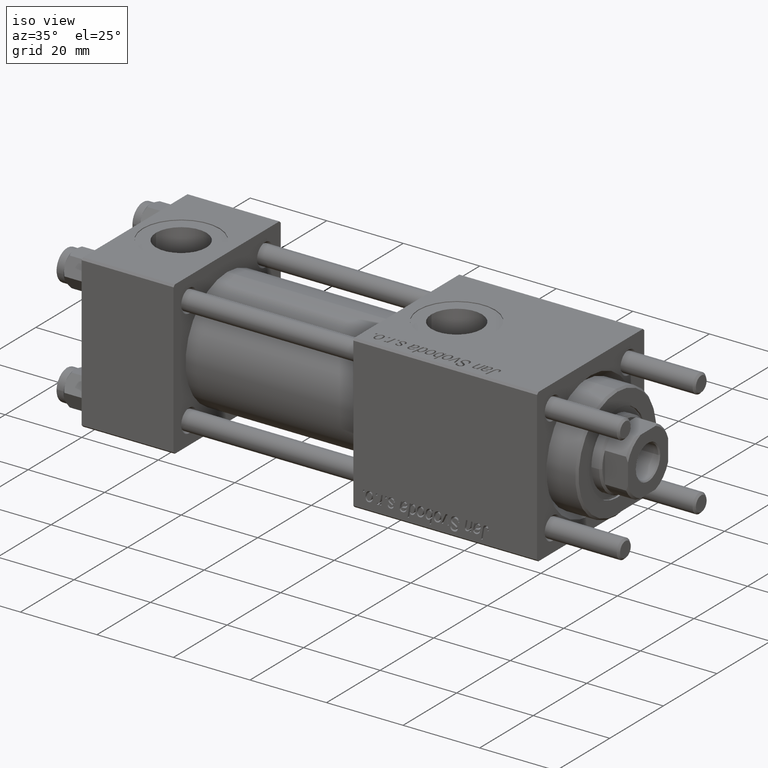
[diagram: clean part render]
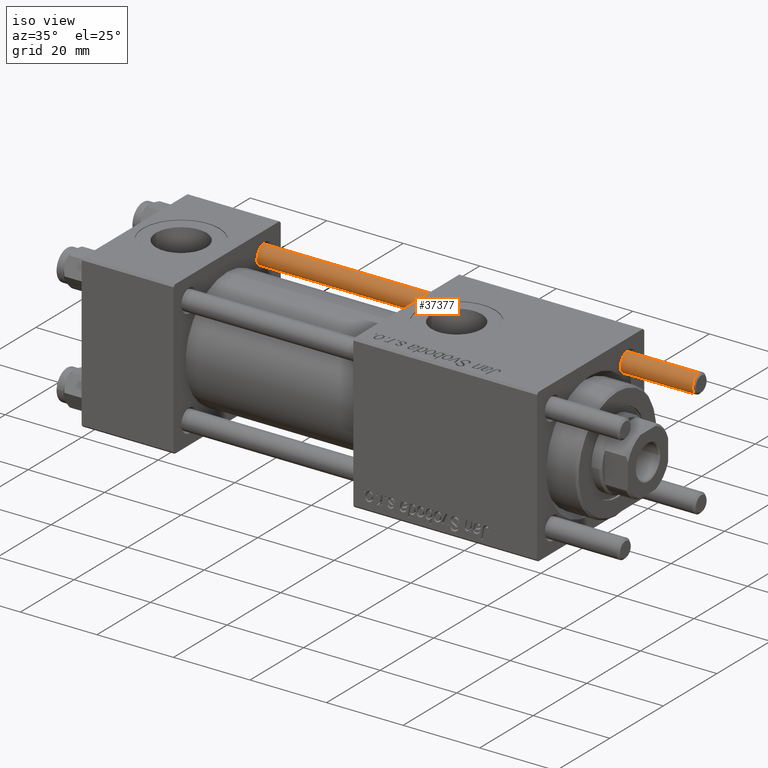
[diagram: same view with one face highlighted and labeled with its STEP entity id]
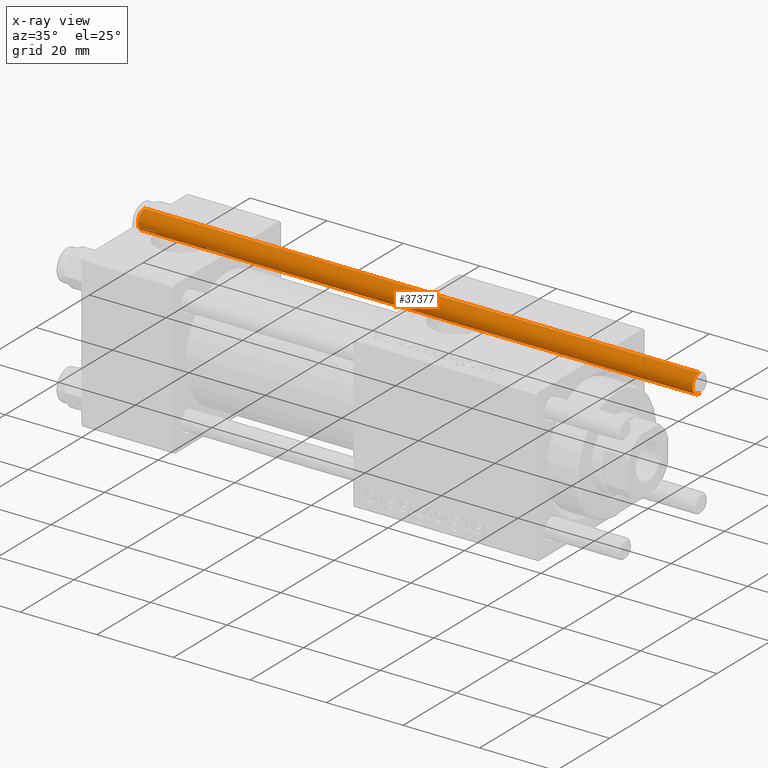
[diagram: x-ray of the same camera — body ghosted, the highlighted face saturated]
A machine part, iso view. The second image highlights one B-rep face of the part: STEP entity #37377.
The next image is the same camera in x-ray: the body ghosted, the highlighted face saturated — about 2% of this face is hidden behind the body in this view.
In plain terms, the highlighted cylindrical surface (edge-blend (fillet) strip) has radius 2.5 mm, axis along (1, -0, -0).
Its self-contained STEP definition (entity closure, byte-faithful):
#1920 = AXIS2_PLACEMENT_3D ( 'NONE', #25861, #8378, #29874 ) ;
#5506 = CARTESIAN_POINT ( 'NONE',  ( 2.500000000000000000, 3.061616997868383141E-16, 0.5000000000000559552 ) ) ;
#8378 = DIRECTION ( 'NONE',  ( -0.000000000000000000, -0.000000000000000000, 1.000000000000000000 ) ) ;
#9857 = ORIENTED_EDGE ( 'NONE', *, *, #49482, .T. ) ;
#9966 = AXIS2_PLACEMENT_3D ( 'NONE', #41410, #10752, #28802 ) ;
#10556 = DIRECTION ( 'NONE',  ( -0.000000000000000000, -0.000000000000000000, -1.000000000000000000 ) ) ;
#10752 = DIRECTION ( 'NONE',  ( -0.000000000000000000, -0.000000000000000000, -1.000000000000000000 ) ) ;
#11445 = ORIENTED_EDGE ( 'NONE', *, *, #31733, .T. ) ;
#11837 = EDGE_CURVE ( 'NONE', #52496, #45591, #15539, .T. ) ;
#15539 = CIRCLE ( 'NONE', #32922, 2.500000000000000000 ) ;
#16168 = EDGE_CURVE ( 'NONE', #52496, #50773, #40093, .T. ) ;
#18597 = CARTESIAN_POINT ( 'NONE',  ( 2.500000000000000000, 3.061616997868383141E-16, 146.0000000000000000 ) ) ;
#20585 = CARTESIAN_POINT ( 'NONE',  ( 0.000000000000000000, 0.000000000000000000, 145.5000000000000284 ) ) ;
#23937 = FACE_OUTER_BOUND ( 'NONE', #32418, .T. ) ;
#25177 = DIRECTION ( 'NONE',  ( 1.000000000000000000, 0.000000000000000000, 0.000000000000000000 ) ) ;
#25190 = CARTESIAN_POINT ( 'NONE',  ( -2.500000000000000000, 0.000000000000000000, 0.5000000000000559552 ) ) ;
#25861 = CARTESIAN_POINT ( 'NONE',  ( 0.000000000000000000, 0.000000000000000000, 0.5000000000000559552 ) ) ;
#27093 = VECTOR ( 'NONE', #35328, 1000.000000000000000 ) ;
#28802 = DIRECTION ( 'NONE',  ( -1.000000000000000000, 0.000000000000000000, 0.000000000000000000 ) ) ;
#29874 = DIRECTION ( 'NONE',  ( 1.000000000000000000, 0.000000000000000000, 0.000000000000000000 ) ) ;
#31733 = EDGE_CURVE ( 'NONE', #45591, #46086, #43919, .T. ) ;
#32418 = EDGE_LOOP ( 'NONE', ( #48446, #32884, #11445, #9857 ) ) ;
#32884 = ORIENTED_EDGE ( 'NONE', *, *, #11837, .T. ) ;
#32922 = AXIS2_PLACEMENT_3D ( 'NONE', #20585, #38363, #25177 ) ;
#35328 = DIRECTION ( 'NONE',  ( -0.000000000000000000, -0.000000000000000000, -1.000000000000000000 ) ) ;
#37377 = ADVANCED_FACE ( 'NONE', ( #23937 ), #50004, .T. ) ;
#38363 = DIRECTION ( 'NONE',  ( 0.000000000000000000, 0.000000000000000000, -1.000000000000000000 ) ) ;
#39360 = VECTOR ( 'NONE', #10556, 1000.000000000000000 ) ;
#40093 = LINE ( 'NONE', #18597, #39360 ) ;
#41410 = CARTESIAN_POINT ( 'NONE',  ( 0.000000000000000000, 0.000000000000000000, 146.0000000000000000 ) ) ;
#43145 = CIRCLE ( 'NONE', #1920, 2.500000000000000000 ) ;
#43919 = LINE ( 'NONE', #52221, #27093 ) ;
#44310 = CARTESIAN_POINT ( 'NONE',  ( 2.500000000000000000, 3.061616997868383141E-16, 145.5000000000000284 ) ) ;
#45591 = VERTEX_POINT ( 'NONE', #53939 ) ;
#46086 = VERTEX_POINT ( 'NONE', #25190 ) ;
#48446 = ORIENTED_EDGE ( 'NONE', *, *, #16168, .F. ) ;
#49482 = EDGE_CURVE ( 'NONE', #46086, #50773, #43145, .T. ) ;
#50004 = CYLINDRICAL_SURFACE ( 'NONE', #9966, 2.500000000000000000 ) ;
#50773 = VERTEX_POINT ( 'NONE', #5506 ) ;
#52221 = CARTESIAN_POINT ( 'NONE',  ( -2.500000000000000000, 0.000000000000000000, 146.0000000000000000 ) ) ;
#52496 = VERTEX_POINT ( 'NONE', #44310 ) ;
#53939 = CARTESIAN_POINT ( 'NONE',  ( -2.500000000000000000, 0.000000000000000000, 145.5000000000000284 ) ) ;